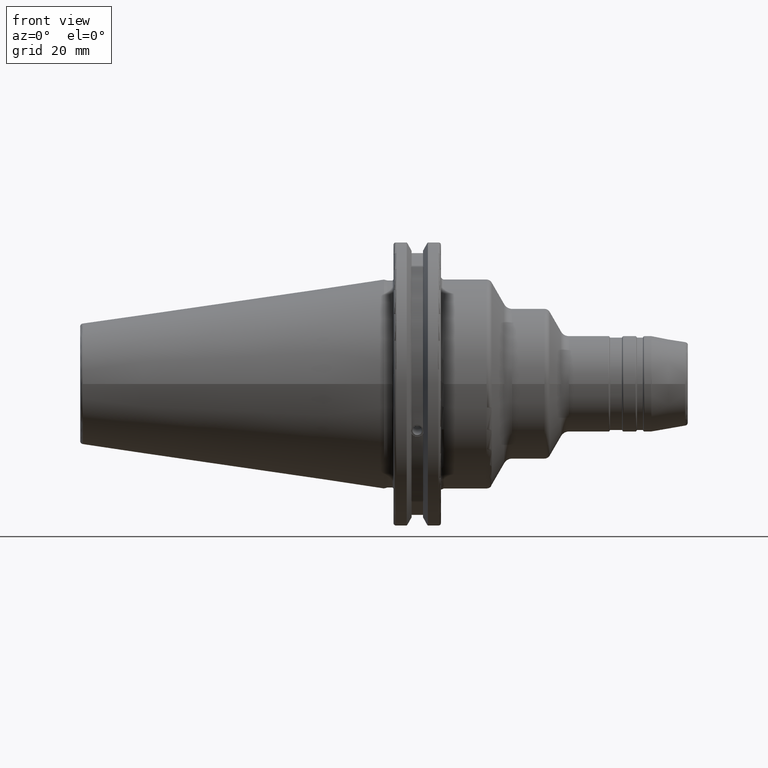
[diagram: clean part render]
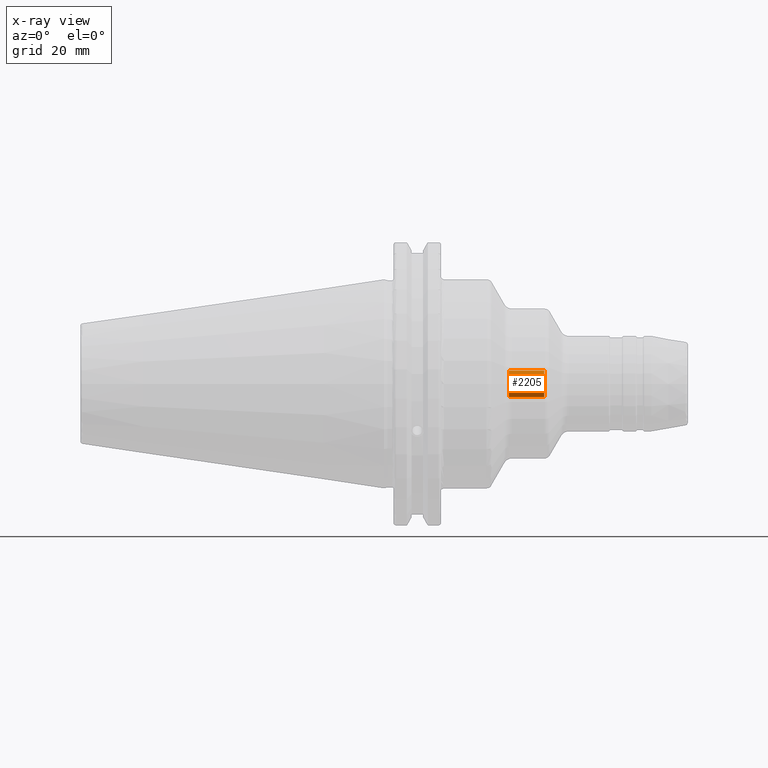
[diagram: x-ray — body ghosted, one internal face saturated and labeled with its STEP entity id]
A machine part, front view, then the same camera in x-ray: the body is ghosted and one INTERNAL B-rep face — a face not visible from any outside direction — is saturated and labeled: STEP entity #2205.
In plain terms, the highlighted cylindrical surface (bore or boss wall) has radius 4.4587 mm, axis along (1, 0, 0).
Its self-contained STEP definition (entity closure, byte-faithful):
#170=FACE_OUTER_BOUND('',#282,.T.);
#282=EDGE_LOOP('',(#1447,#1448,#1449,#1450,#1451,#1452));
#413=LINE('',#3386,#520);
#520=VECTOR('',#2656,4.458734);
#627=CIRCLE('',#2338,4.458734);
#628=CIRCLE('',#2339,4.458734);
#629=CIRCLE('',#2340,4.458734);
#630=CIRCLE('',#2341,4.458734);
#824=VERTEX_POINT('',#3381);
#825=VERTEX_POINT('',#3382);
#826=VERTEX_POINT('',#3385);
#827=VERTEX_POINT('',#3387);
#1085=EDGE_CURVE('',#824,#825,#627,.T.);
#1086=EDGE_CURVE('',#825,#824,#628,.T.);
#1087=EDGE_CURVE('',#825,#826,#413,.T.);
#1088=EDGE_CURVE('',#827,#826,#629,.T.);
#1089=EDGE_CURVE('',#826,#827,#630,.T.);
#1447=ORIENTED_EDGE('',*,*,#1085,.F.);
#1448=ORIENTED_EDGE('',*,*,#1086,.F.);
#1449=ORIENTED_EDGE('',*,*,#1087,.T.);
#1450=ORIENTED_EDGE('',*,*,#1088,.F.);
#1451=ORIENTED_EDGE('',*,*,#1089,.F.);
#1452=ORIENTED_EDGE('',*,*,#1087,.F.);
#2171=CYLINDRICAL_SURFACE('',#2337,4.458734);
#2205=ADVANCED_FACE('',(#170),#2171,.F.);
#2337=AXIS2_PLACEMENT_3D('',#3380,#2650,#2651);
#2338=AXIS2_PLACEMENT_3D('',#3383,#2652,#2653);
#2339=AXIS2_PLACEMENT_3D('',#3384,#2654,#2655);
#2340=AXIS2_PLACEMENT_3D('',#3388,#2657,#2658);
#2341=AXIS2_PLACEMENT_3D('',#3389,#2659,#2660);
#2650=DIRECTION('center_axis',(1.,0.,0.));
#2651=DIRECTION('ref_axis',(0.,0.,-1.));
#2652=DIRECTION('center_axis',(-1.,0.,0.));
#2653=DIRECTION('ref_axis',(0.,0.,-1.));
#2654=DIRECTION('center_axis',(-1.,0.,0.));
#2655=DIRECTION('ref_axis',(0.,0.,-1.));
#2656=DIRECTION('',(-1.,0.,0.));
#2657=DIRECTION('center_axis',(1.,0.,0.));
#2658=DIRECTION('ref_axis',(0.,0.,-1.));
#2659=DIRECTION('center_axis',(1.,0.,0.));
#2660=DIRECTION('ref_axis',(0.,0.,-1.));
#3380=CARTESIAN_POINT('Origin',(-191.235656137464,0.,0.));
#3381=CARTESIAN_POINT('',(53.6,0.,-4.458734));
#3382=CARTESIAN_POINT('',(53.6,-5.46037432134947E-16,4.458734));
#3383=CARTESIAN_POINT('Origin',(53.6,0.,0.));
#3384=CARTESIAN_POINT('Origin',(53.6,0.,0.));
#3385=CARTESIAN_POINT('',(41.7767315071168,-5.46037432134947E-16,4.458734));
#3386=CARTESIAN_POINT('',(-191.235656137464,-5.46037432134947E-16,4.458734));
#3387=CARTESIAN_POINT('',(41.7767315071168,-5.46037432134948E-16,-4.45873400000001));
#3388=CARTESIAN_POINT('Origin',(41.7767315071168,0.,0.));
#3389=CARTESIAN_POINT('Origin',(41.7767315071168,0.,0.));